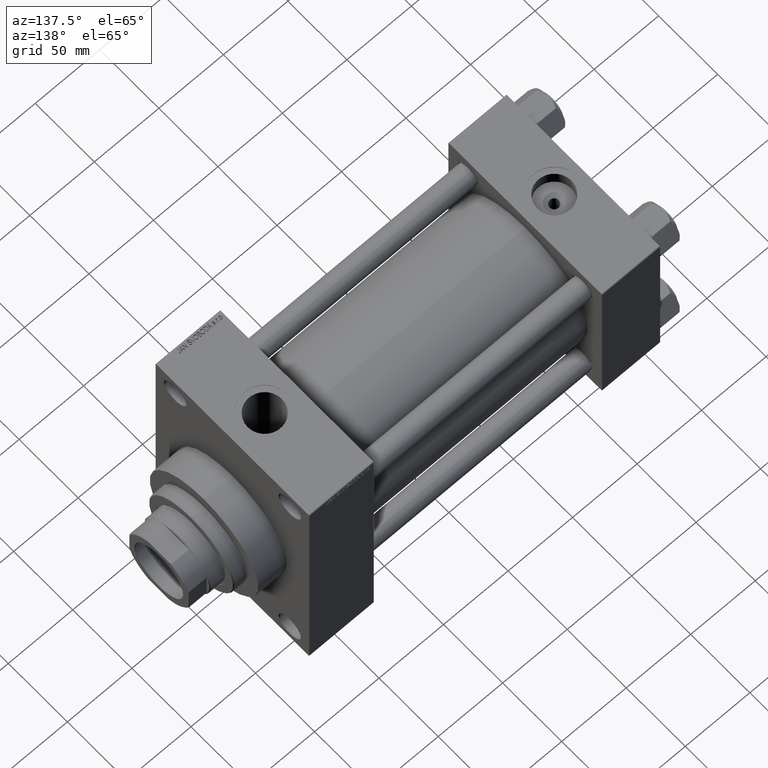
[diagram: clean part render]
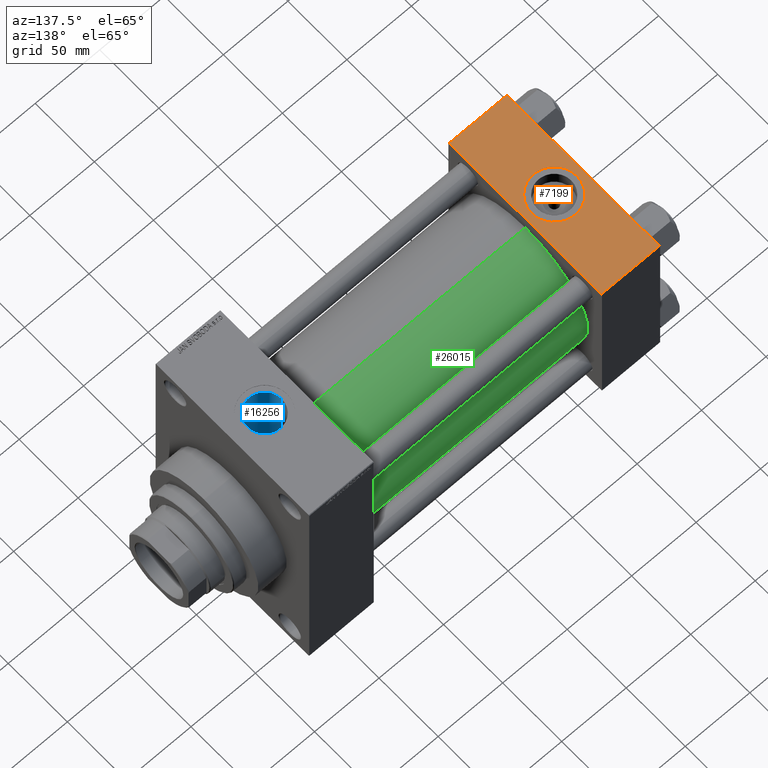
[diagram: same view with three faces highlighted in distinct colors, each labeled with its STEP entity id]
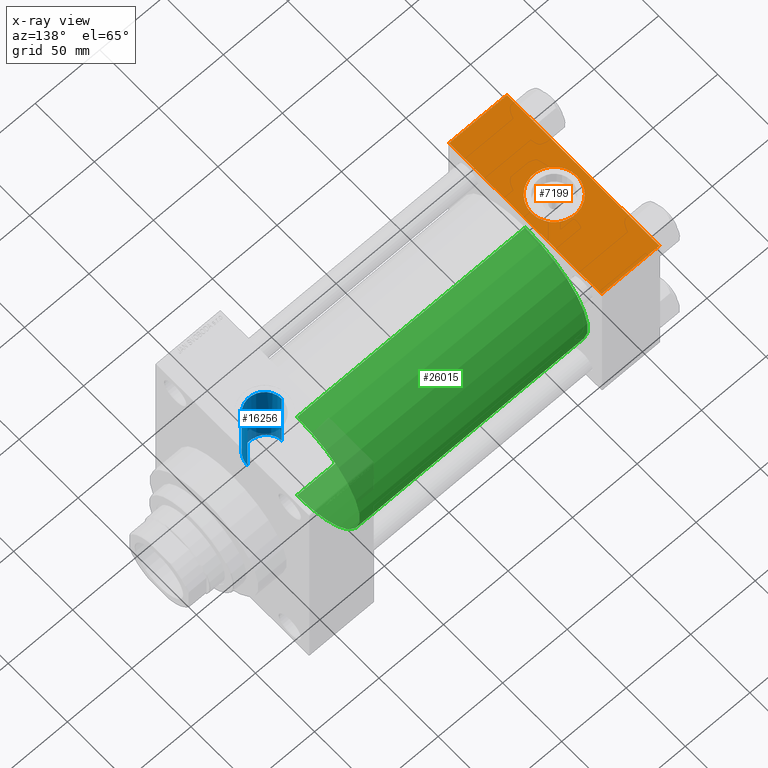
[diagram: x-ray of the same camera — body ghosted, the three highlighted faces saturated]
A machine part, auxiliary view with three faces highlighted in distinct colors.
The next image is the same camera in x-ray (body ghosted, the three faces saturated) — at least one of them is partly hidden behind the body in this view.
Their STEP definitions:

[orange] entity #7199 — the highlighted planar face has unit normal (0, 0, -1).
#25 = DIRECTION ( 'NONE',  ( 0.000000000000000000, 1.067522139062650548E-16, -1.000000000000000000 ) ) ;
#302 = DIRECTION ( 'NONE',  ( 1.000000000000000000, 0.000000000000000000, 0.000000000000000000 ) ) ;
#3814 = EDGE_CURVE ( 'NONE', #14409, #20359, #25520, .T. ) ;
#4514 = VERTEX_POINT ( 'NONE', #7549 ) ;
#6173 = DIRECTION ( 'NONE',  ( 1.000000000000000000, 0.000000000000000000, 0.000000000000000000 ) ) ;
#7189 = CARTESIAN_POINT ( 'NONE',  ( 0.000000000000000000, 65.00000000000000000, 65.00000000000001421 ) ) ;
#7199 = ADVANCED_FACE ( 'NONE', ( #10219, #39637 ), #18134, .F. ) ;
#7549 = CARTESIAN_POINT ( 'NONE',  ( 45.00000000000000000, 64.49999999999997158, 65.00000000000001421 ) ) ;
#7833 = ORIENTED_EDGE ( 'NONE', *, *, #33818, .F. ) ;
#7857 = CIRCLE ( 'NONE', #20952, 17.50000000000000000 ) ;
#8214 = VERTEX_POINT ( 'NONE', #31228 ) ;
#9389 = CARTESIAN_POINT ( 'NONE',  ( 22.50000000000000000, -8.673617379884035472E-15, 65.00000000000000000 ) ) ;
#9563 = CARTESIAN_POINT ( 'NONE',  ( 45.00000000000000000, -64.49999999999997158, 65.00000000000000000 ) ) ;
#9620 = DIRECTION ( 'NONE',  ( 0.000000000000000000, 0.000000000000000000, 1.000000000000000000 ) ) ;
#10219 = FACE_BOUND ( 'NONE', #18203, .T. ) ;
#10728 = DIRECTION ( 'NONE',  ( 0.000000000000000000, -1.000000000000000000, -1.067522139062650425E-16 ) ) ;
#11462 = VECTOR ( 'NONE', #43405, 1000.000000000000000 ) ;
#11668 = LINE ( 'NONE', #43780, #30889 ) ;
#13533 = ORIENTED_EDGE ( 'NONE', *, *, #35262, .T. ) ;
#14409 = VERTEX_POINT ( 'NONE', #44108 ) ;
#14581 = VERTEX_POINT ( 'NONE', #14900 ) ;
#14616 = CARTESIAN_POINT ( 'NONE',  ( 0.000000000000000000, -64.49999999999997158, 65.00000000000000000 ) ) ;
#14900 = CARTESIAN_POINT ( 'NONE',  ( 45.00000000000000000, -64.49999999999997158, 65.00000000000000000 ) ) ;
#17142 = LINE ( 'NONE', #24845, #44753 ) ;
#18134 = PLANE ( 'NONE',  #36960 ) ;
#18203 = EDGE_LOOP ( 'NONE', ( #41703, #22061 ) ) ;
#19571 = ORIENTED_EDGE ( 'NONE', *, *, #30046, .T. ) ;
#20359 = VERTEX_POINT ( 'NONE', #14616 ) ;
#20952 = AXIS2_PLACEMENT_3D ( 'NONE', #24946, #47402, #302 ) ;
#22061 = ORIENTED_EDGE ( 'NONE', *, *, #24042, .F. ) ;
#22861 = CIRCLE ( 'NONE', #26724, 17.50000000000000000 ) ;
#23599 = DIRECTION ( 'NONE',  ( 1.000000000000000000, 0.000000000000000000, 0.000000000000000000 ) ) ;
#24042 = EDGE_CURVE ( 'NONE', #8214, #47197, #22861, .T. ) ;
#24845 = CARTESIAN_POINT ( 'NONE',  ( 0.000000000000000000, 64.49999999999997158, 65.00000000000001421 ) ) ;
#24904 = EDGE_LOOP ( 'NONE', ( #30241, #19571, #7833, #13533 ) ) ;
#24946 = CARTESIAN_POINT ( 'NONE',  ( 22.50000000000000000, -8.673617379884035472E-15, 65.00000000000000000 ) ) ;
#25520 = LINE ( 'NONE', #7189, #11462 ) ;
#26724 = AXIS2_PLACEMENT_3D ( 'NONE', #9389, #9620, #23599 ) ;
#30046 = EDGE_CURVE ( 'NONE', #20359, #14581, #32198, .T. ) ;
#30241 = ORIENTED_EDGE ( 'NONE', *, *, #3814, .T. ) ;
#30889 = VECTOR ( 'NONE', #10728, 1000.000000000000000 ) ;
#31228 = CARTESIAN_POINT ( 'NONE',  ( 4.999999999999997335, -6.530485481376167224E-15, 65.00000000000000000 ) ) ;
#31566 = VECTOR ( 'NONE', #6173, 1000.000000000000000 ) ;
#32198 = LINE ( 'NONE', #9563, #31566 ) ;
#32377 = CARTESIAN_POINT ( 'NONE',  ( 45.00000000000000000, 65.00000000000000000, 65.00000000000001421 ) ) ;
#33818 = EDGE_CURVE ( 'NONE', #4514, #14581, #11668, .T. ) ;
#35262 = EDGE_CURVE ( 'NONE', #4514, #14409, #17142, .T. ) ;
#36960 = AXIS2_PLACEMENT_3D ( 'NONE', #32377, #25, #39874 ) ;
#38757 = EDGE_CURVE ( 'NONE', #47197, #8214, #7857, .T. ) ;
#39637 = FACE_OUTER_BOUND ( 'NONE', #24904, .T. ) ;
#39874 = DIRECTION ( 'NONE',  ( 0.000000000000000000, 1.000000000000000000, 1.067522139062650548E-16 ) ) ;
#41703 = ORIENTED_EDGE ( 'NONE', *, *, #38757, .F. ) ;
#42965 = DIRECTION ( 'NONE',  ( -1.000000000000000000, 0.000000000000000000, 0.000000000000000000 ) ) ;
#43405 = DIRECTION ( 'NONE',  ( 0.000000000000000000, -1.000000000000000000, -1.067522139062650425E-16 ) ) ;
#43689 = CARTESIAN_POINT ( 'NONE',  ( 40.00000000000000000, -8.673617379884035472E-15, 65.00000000000000000 ) ) ;
#43780 = CARTESIAN_POINT ( 'NONE',  ( 45.00000000000000000, 65.00000000000000000, 65.00000000000001421 ) ) ;
#44108 = CARTESIAN_POINT ( 'NONE',  ( 0.000000000000000000, 64.49999999999997158, 65.00000000000001421 ) ) ;
#44753 = VECTOR ( 'NONE', #42965, 1000.000000000000000 ) ;
#47197 = VERTEX_POINT ( 'NONE', #43689 ) ;
#47402 = DIRECTION ( 'NONE',  ( 0.000000000000000000, 0.000000000000000000, 1.000000000000000000 ) ) ;

[blue] entity #16256 — the highlighted cylindrical surface (edge-blend (fillet) strip) has radius 13.22 mm, axis along (0, 0, -1).
#417 = DIRECTION ( 'NONE',  ( 0.000000000000000000, 0.000000000000000000, -1.000000000000000000 ) ) ;
#659 = CARTESIAN_POINT ( 'NONE',  ( 242.1651837322211236, -12.31495098171282088, 35.94981938685186407 ) ) ;
#1392 = CARTESIAN_POINT ( 'NONE',  ( 242.6470234235080738, -12.49324744184129443, 35.88793482582379113 ) ) ;
#1864 = CARTESIAN_POINT ( 'NONE',  ( 260.1474619350561852, -1.428652546488343056, 42.72761509841833316 ) ) ;
#2671 = CARTESIAN_POINT ( 'NONE',  ( 246.6814230918164412, -13.22630302104230537, 35.62395438639613587 ) ) ;
#2806 = CYLINDRICAL_SURFACE ( 'NONE', #7349, 13.21999999999998110 ) ;
#2908 = CARTESIAN_POINT ( 'NONE',  ( 245.6465934105188751, -13.15308097112494146, 35.65105309393389632 ) ) ;
#3052 = CARTESIAN_POINT ( 'NONE',  ( 258.0015928053663288, -7.364010740346946804, 42.11487085516267115 ) ) ;
#3717 = CARTESIAN_POINT ( 'NONE',  ( 246.9999999999999432, 0.000000000000000000, 94.79999999999996874 ) ) ;
#3749 = CARTESIAN_POINT ( 'NONE',  ( 252.0881855045064697, -12.22213168823641816, 40.96686556097023413 ) ) ;
#3861 = VERTEX_POINT ( 'NONE', #45911 ) ;
#4294 = LINE ( 'NONE', #44349, #34854 ) ;
#4512 = CARTESIAN_POINT ( 'NONE',  ( 260.2199999999999704, 5.235365066362919533E-15, 42.75000000000000000 ) ) ;
#4698 = EDGE_CURVE ( 'NONE', #15894, #3861, #27434, .T. ) ;
#4766 = CARTESIAN_POINT ( 'NONE',  ( 260.2199999999999704, 1.618983068472796024E-15, 94.79999999999996874 ) ) ;
#5018 = CARTESIAN_POINT ( 'NONE',  ( 234.0208682072191380, -2.563995466671133094, 37.91671060019312733 ) ) ;
#5721 = CARTESIAN_POINT ( 'NONE',  ( 246.9999999999999432, 0.000000000000000000, 117.7999999999999545 ) ) ;
#5727 = CARTESIAN_POINT ( 'NONE',  ( 259.9325276923766523, -2.832175481623195878, 42.66183901135581635 ) ) ;
#5792 = ORIENTED_EDGE ( 'NONE', *, *, #40739, .F. ) ;
#6436 = FACE_OUTER_BOUND ( 'NONE', #41481, .T. ) ;
#7143 = CARTESIAN_POINT ( 'NONE',  ( 258.8678695714943387, -5.834913689629340539, 42.35109966501105561 ) ) ;
#7349 = AXIS2_PLACEMENT_3D ( 'NONE', #5721, #17514, #13900 ) ;
#8049 = ORIENTED_EDGE ( 'NONE', *, *, #39355, .F. ) ;
#8295 = DIRECTION ( 'NONE',  ( 1.000000000000000000, 0.000000000000000000, 0.000000000000000000 ) ) ;
#8399 = CARTESIAN_POINT ( 'NONE',  ( 233.7800000000000011, -0.5124923440507870298, 37.99999999999999289 ) ) ;
#8881 = CARTESIAN_POINT ( 'NONE',  ( 235.6733780949269885, -6.836262114151420377, 37.38252047338826856 ) ) ;
#9088 = VERTEX_POINT ( 'NONE', #31286 ) ;
#9918 = CARTESIAN_POINT ( 'NONE',  ( 249.7396828457915205, -12.94319493727704895, 35.72789157605164689 ) ) ;
#10304 = CARTESIAN_POINT ( 'NONE',  ( 250.7399999999999523, -12.67993690836036791, 40.82623788692757216 ) ) ;
#12018 = CARTESIAN_POINT ( 'NONE',  ( 233.9297342754259432, -2.050085931408939466, 37.94812610307854328 ) ) ;
#12256 = CARTESIAN_POINT ( 'NONE',  ( 234.7266675305089620, -5.017990412168544800, 37.67859395355885965 ) ) ;
#13863 = EDGE_CURVE ( 'NONE', #25092, #20987, #30401, .T. ) ;
#13900 = DIRECTION ( 'NONE',  ( -1.000000000000000000, 0.000000000000000000, 0.000000000000000000 ) ) ;
#15528 = DIRECTION ( 'NONE',  ( -0.000000000000000000, -0.000000000000000000, -1.000000000000000000 ) ) ;
#15894 = VERTEX_POINT ( 'NONE', #45904 ) ;
#16104 = CARTESIAN_POINT ( 'NONE',  ( 234.3777378405983427, -4.062146891642636426, 37.79554239058285248 ) ) ;
#16181 = ORIENTED_EDGE ( 'NONE', *, *, #34971, .T. ) ;
#16256 = ADVANCED_FACE ( 'NONE', ( #6436 ), #2806, .F. ) ;
#16544 = LINE ( 'NONE', #38737, #27109 ) ;
#16574 = CARTESIAN_POINT ( 'NONE',  ( 259.7629584476919149, -3.518170577613227046, 42.61034067485236676 ) ) ;
#16808 = CARTESIAN_POINT ( 'NONE',  ( 260.2199999999999704, 5.235365066362919533E-15, 42.75000000000000000 ) ) ;
#17050 = CARTESIAN_POINT ( 'NONE',  ( 260.1041229325395534, -1.782171368608850948, 42.71427362908443115 ) ) ;
#17188 = CARTESIAN_POINT ( 'NONE',  ( 250.7399999999999523, -12.67993690836036791, 40.82623788692757216 ) ) ;
#17375 = CARTESIAN_POINT ( 'NONE',  ( 245.9061800254221737, -13.17721531947966440, 35.64212817518318133 ) ) ;
#17514 = DIRECTION ( 'NONE',  ( 0.000000000000000000, 0.000000000000000000, -1.000000000000000000 ) ) ;
#17618 = CARTESIAN_POINT ( 'NONE',  ( 244.8788164647795611, -13.05123934391902729, 35.68847932861486782 ) ) ;
#19719 = CARTESIAN_POINT ( 'NONE',  ( 236.5335653968728309, -8.091804117011186293, 37.13059057153026998 ) ) ;
#20292 = DIRECTION ( 'NONE',  ( -0.000000000000000000, -0.000000000000000000, 1.000000000000000000 ) ) ;
#20987 = VERTEX_POINT ( 'NONE', #17188 ) ;
#23806 = CARTESIAN_POINT ( 'NONE',  ( 260.2199999999999704, -0.3557163794469060392, 42.75000000000000711 ) ) ;
#24594 = CARTESIAN_POINT ( 'NONE',  ( 250.7399999999999523, -12.67993690836036791, 117.7999999999999545 ) ) ;
#24605 = CARTESIAN_POINT ( 'NONE',  ( 248.7273020000270094, -13.11672920664984687, 35.66454747468239361 ) ) ;
#24758 = CARTESIAN_POINT ( 'NONE',  ( 253.3650373963748450, -11.60846388096251580, 41.14496498017212645 ) ) ;
#25092 = VERTEX_POINT ( 'NONE', #4512 ) ;
#25466 = CARTESIAN_POINT ( 'NONE',  ( 257.1575723231068764, -8.490431257591488645, 41.90230994099356110 ) ) ;
#26482 = CARTESIAN_POINT ( 'NONE',  ( 233.8096983583113513, -1.025007823581736810, 37.98963656081625828 ) ) ;
#27109 = VECTOR ( 'NONE', #35112, 1000.000000000000000 ) ;
#27414 = ORIENTED_EDGE ( 'NONE', *, *, #4698, .T. ) ;
#27434 = B_SPLINE_CURVE_WITH_KNOTS ( 'NONE', 3,
 ( #40050, #35947, #9918, #24605, #39335, #35717, #2671, #17375, #2908, #46839, #17618, #30327, #42165, #1392, #659, #34439, #41454, #41930, #38537, #44838, #34679, #19719, #30565, #8881, #33963, #12256, #16104, #5018, #12018, #26482, #8399, #41695 ),
 .UNSPECIFIED., .F., .F.,
 ( 4, 2, 2, 2, 2, 2, 2, 2, 2, 2, 2, 2, 2, 2, 2, 4 ),
 ( 0.01705422015311714931, 0.01859208991726069363, 0.02012995968140424141, 0.02166782944554778573, 0.02243676432761955788, 0.02320569920969133004, 0.02474356897383487783, 0.02628143873797842561, 0.02935717826626558710, 0.03089504803040917652, 0.03243291779455276247, 0.03397078755869634842, 0.03550865732283993437, 0.03858439685112713402, 0.04012226661527072691, 0.04166013637941432673 ),
 .UNSPECIFIED. ) ;
#27635 = EDGE_CURVE ( 'NONE', #15894, #20987, #28222, .T. ) ;
#27961 = CIRCLE ( 'NONE', #44926, 13.22000000000000952 ) ;
#28222 = LINE ( 'NONE', #24594, #42282 ) ;
#30327 = CARTESIAN_POINT ( 'NONE',  ( 244.1213861529209908, -12.91299555985392011, 35.73883275200964249 ) ) ;
#30401 = B_SPLINE_CURVE_WITH_KNOTS ( 'NONE', 3,
 ( #16808, #23806, #34911, #1864, #17050, #5727, #16574, #36785, #32466, #43357, #7143, #43820, #3052, #25466, #43108, #43591, #32701, #39723, #24758, #3749, #40423, #10304 ),
 .UNSPECIFIED., .F., .F.,
 ( 4, 2, 2, 2, 2, 2, 2, 2, 2, 2, 4 ),
 ( 0.01702171439019714225, 0.01808348912762103300, 0.01914526386504492375, 0.02126881333989270526, 0.02233058807731657519, 0.02339236281474044166, 0.02551591228958810173, 0.02763946176443576180, 0.02976301123928342188, 0.03188656071413108195, 0.03401011018897874549 ),
 .UNSPECIFIED. ) ;
#30565 = CARTESIAN_POINT ( 'NONE',  ( 236.2318264884937662, -7.685914564966234153, 37.21712017253236127 ) ) ;
#31286 = CARTESIAN_POINT ( 'NONE',  ( 233.7799999999999727, 0.000000000000000000, 94.79999999999996874 ) ) ;
#32466 = CARTESIAN_POINT ( 'NONE',  ( 259.2993960643596552, -4.860054019011672111, 42.47412520213218556 ) ) ;
#32701 = CARTESIAN_POINT ( 'NONE',  ( 255.1351602650895813, -10.44419664956251381, 41.45664902860858803 ) ) ;
#33963 = CARTESIAN_POINT ( 'NONE',  ( 235.4152396125651023, -6.389315783911330371, 37.46185808708514742 ) ) ;
#34439 = CARTESIAN_POINT ( 'NONE',  ( 240.7505307718750203, -11.69499031497650066, 36.15822628461805266 ) ) ;
#34679 = CARTESIAN_POINT ( 'NONE',  ( 237.1815366388300390, -8.866866661621797263, 36.95316935884812892 ) ) ;
#34854 = VECTOR ( 'NONE', #417, 1000.000000000000000 ) ;
#34911 = CARTESIAN_POINT ( 'NONE',  ( 260.2055487969409455, -0.7143419376948665356, 42.74552439370960855 ) ) ;
#34971 = EDGE_CURVE ( 'NONE', #43951, #25092, #16544, .T. ) ;
#35112 = DIRECTION ( 'NONE',  ( 0.000000000000000000, 0.000000000000000000, -1.000000000000000000 ) ) ;
#35717 = CARTESIAN_POINT ( 'NONE',  ( 247.1955284908291048, -13.22847384726379438, 35.62314322171079084 ) ) ;
#35947 = CARTESIAN_POINT ( 'NONE',  ( 250.2468141908902908, -12.82540410897820671, 35.77055802578578891 ) ) ;
#36785 = CARTESIAN_POINT ( 'NONE',  ( 259.4260137807291358, -4.526382623994720689, 42.51103856060491637 ) ) ;
#38537 = CARTESIAN_POINT ( 'NONE',  ( 238.2661982700706176, -9.937219993078532099, 36.67946192170869324 ) ) ;
#38737 = CARTESIAN_POINT ( 'NONE',  ( 260.2199999999999704, 1.618983068472799179E-15, 117.7999999999999545 ) ) ;
#39335 = CARTESIAN_POINT ( 'NONE',  ( 248.2184681352996449, -13.17368919937491434, 35.64343931497821671 ) ) ;
#39355 = EDGE_CURVE ( 'NONE', #9088, #3861, #4294, .T. ) ;
#39723 = CARTESIAN_POINT ( 'NONE',  ( 253.9822741085589541, -11.24766306689393680, 41.24590971077733315 ) ) ;
#40050 = CARTESIAN_POINT ( 'NONE',  ( 250.7399999999999523, -12.67993690836037679, 35.82204907595320975 ) ) ;
#40423 = CARTESIAN_POINT ( 'NONE',  ( 251.4263400167578482, -12.47749807280257173, 40.88911195506443619 ) ) ;
#40557 = ORIENTED_EDGE ( 'NONE', *, *, #27635, .F. ) ;
#40739 = EDGE_CURVE ( 'NONE', #43951, #9088, #27961, .T. ) ;
#41454 = CARTESIAN_POINT ( 'NONE',  ( 239.8755652418721525, -11.18215487821177057, 36.32301804256498201 ) ) ;
#41481 = EDGE_LOOP ( 'NONE', ( #5792, #16181, #41971, #40557, #27414, #8049 ) ) ;
#41695 = CARTESIAN_POINT ( 'NONE',  ( 233.7799999999999727, 4.670198142502455703E-15, 38.00000000000000000 ) ) ;
#41930 = CARTESIAN_POINT ( 'NONE',  ( 238.6581883585389505, -10.26839900491648727, 36.58771021444267291 ) ) ;
#41971 = ORIENTED_EDGE ( 'NONE', *, *, #13863, .T. ) ;
#42165 = CARTESIAN_POINT ( 'NONE',  ( 243.6246063200817105, -12.79204261344250426, 35.78252008287735464 ) ) ;
#42282 = VECTOR ( 'NONE', #20292, 1000.000000000000000 ) ;
#43108 = CARTESIAN_POINT ( 'NONE',  ( 256.6852196200359231, -9.025364359016274207, 41.78941323369598848 ) ) ;
#43357 = CARTESIAN_POINT ( 'NONE',  ( 259.0198534454123092, -5.515287097378159586, 42.39402133541480566 ) ) ;
#43591 = CARTESIAN_POINT ( 'NONE',  ( 255.6754924569604270, -9.999825575006532574, 41.56700312386079332 ) ) ;
#43820 = CARTESIAN_POINT ( 'NONE',  ( 258.3763861193418165, -6.770732795594975428, 42.21512903942317507 ) ) ;
#43951 = VERTEX_POINT ( 'NONE', #4766 ) ;
#44349 = CARTESIAN_POINT ( 'NONE',  ( 233.7799999999999727, 0.000000000000000000, 117.7999999999999545 ) ) ;
#44838 = CARTESIAN_POINT ( 'NONE',  ( 237.5277665390036361, -9.236039579220991058, 36.86226852688235311 ) ) ;
#44926 = AXIS2_PLACEMENT_3D ( 'NONE', #3717, #15528, #8295 ) ;
#45904 = CARTESIAN_POINT ( 'NONE',  ( 250.7399999999999523, -12.67993690836037679, 35.82204907595320975 ) ) ;
#45911 = CARTESIAN_POINT ( 'NONE',  ( 233.7799999999999727, 4.670198142502455703E-15, 38.00000000000000000 ) ) ;
#46839 = CARTESIAN_POINT ( 'NONE',  ( 245.1333413548220221, -13.09010442784175865, 35.67422447380825901 ) ) ;

[green] entity #26015 — the highlighted cylindrical surface (partial cylindrical patch) has radius 53 mm, axis along (-1, -0, -0).
#1253 = AXIS2_PLACEMENT_3D ( 'NONE', #17825, #3574, #28680 ) ;
#3432 = CARTESIAN_POINT ( 'NONE',  ( 44.99999999999998579, -2.602085213965210642E-15, 53.00000000000000711 ) ) ;
#3574 = DIRECTION ( 'NONE',  ( 1.000000000000000000, -0.000000000000000000, 0.000000000000000000 ) ) ;
#4285 = VECTOR ( 'NONE', #45429, 1000.000000000000000 ) ;
#6936 = EDGE_CURVE ( 'NONE', #7342, #22561, #21356, .T. ) ;
#7342 = VERTEX_POINT ( 'NONE', #44921 ) ;
#11347 = ORIENTED_EDGE ( 'NONE', *, *, #45960, .F. ) ;
#13640 = DIRECTION ( 'NONE',  ( -1.000000000000000000, -0.000000000000000000, -0.000000000000000000 ) ) ;
#13807 = ORIENTED_EDGE ( 'NONE', *, *, #16785, .T. ) ;
#14706 = ORIENTED_EDGE ( 'NONE', *, *, #6936, .F. ) ;
#16785 = EDGE_CURVE ( 'NONE', #36759, #42060, #30675, .T. ) ;
#17825 = CARTESIAN_POINT ( 'NONE',  ( 44.99999999999998579, -2.602085213965210642E-15, 0.000000000000000000 ) ) ;
#18232 = EDGE_CURVE ( 'NONE', #42060, #22561, #45980, .T. ) ;
#19732 = CARTESIAN_POINT ( 'NONE',  ( 221.9999999999999716, -2.602085213965210642E-15, 53.00000000000000711 ) ) ;
#20431 = CYLINDRICAL_SURFACE ( 'NONE', #22163, 53.00000000000000711 ) ;
#21356 = LINE ( 'NONE', #19732, #30036 ) ;
#22163 = AXIS2_PLACEMENT_3D ( 'NONE', #42864, #34906, #42633 ) ;
#22561 = VERTEX_POINT ( 'NONE', #3432 ) ;
#25831 = EDGE_LOOP ( 'NONE', ( #11347, #13807, #30640, #14706 ) ) ;
#26015 = ADVANCED_FACE ( 'NONE', ( #28126 ), #20431, .T. ) ;
#28126 = FACE_OUTER_BOUND ( 'NONE', #25831, .T. ) ;
#28680 = DIRECTION ( 'NONE',  ( 0.000000000000000000, 0.000000000000000000, 1.000000000000000000 ) ) ;
#29376 = DIRECTION ( 'NONE',  ( 1.000000000000000000, 0.000000000000000000, 0.000000000000000000 ) ) ;
#30036 = VECTOR ( 'NONE', #13640, 1000.000000000000000 ) ;
#30200 = CARTESIAN_POINT ( 'NONE',  ( 221.9999999999999716, 3.888542821515762466E-15, -53.00000000000000711 ) ) ;
#30640 = ORIENTED_EDGE ( 'NONE', *, *, #18232, .T. ) ;
#30675 = LINE ( 'NONE', #30200, #4285 ) ;
#31053 = CIRCLE ( 'NONE', #34920, 53.00000000000000711 ) ;
#34906 = DIRECTION ( 'NONE',  ( -1.000000000000000000, -0.000000000000000000, -0.000000000000000000 ) ) ;
#34920 = AXIS2_PLACEMENT_3D ( 'NONE', #40253, #29376, #39544 ) ;
#36759 = VERTEX_POINT ( 'NONE', #38845 ) ;
#38845 = CARTESIAN_POINT ( 'NONE',  ( 221.9999999999999716, 3.888542821515762466E-15, -53.00000000000000711 ) ) ;
#39544 = DIRECTION ( 'NONE',  ( 0.000000000000000000, 0.000000000000000000, -1.000000000000000000 ) ) ;
#40253 = CARTESIAN_POINT ( 'NONE',  ( 221.9999999999999716, -2.602085213965210642E-15, 0.000000000000000000 ) ) ;
#42060 = VERTEX_POINT ( 'NONE', #45385 ) ;
#42633 = DIRECTION ( 'NONE',  ( 0.000000000000000000, 0.000000000000000000, 1.000000000000000000 ) ) ;
#42864 = CARTESIAN_POINT ( 'NONE',  ( 221.9999999999999716, -2.602085213965210642E-15, 0.000000000000000000 ) ) ;
#44921 = CARTESIAN_POINT ( 'NONE',  ( 221.9999999999999716, -2.602085213965210642E-15, 53.00000000000000711 ) ) ;
#45385 = CARTESIAN_POINT ( 'NONE',  ( 44.99999999999998579, 3.888542821515762466E-15, -53.00000000000000711 ) ) ;
#45429 = DIRECTION ( 'NONE',  ( -1.000000000000000000, -0.000000000000000000, -0.000000000000000000 ) ) ;
#45960 = EDGE_CURVE ( 'NONE', #36759, #7342, #31053, .T. ) ;
#45980 = CIRCLE ( 'NONE', #1253, 53.00000000000000711 ) ;